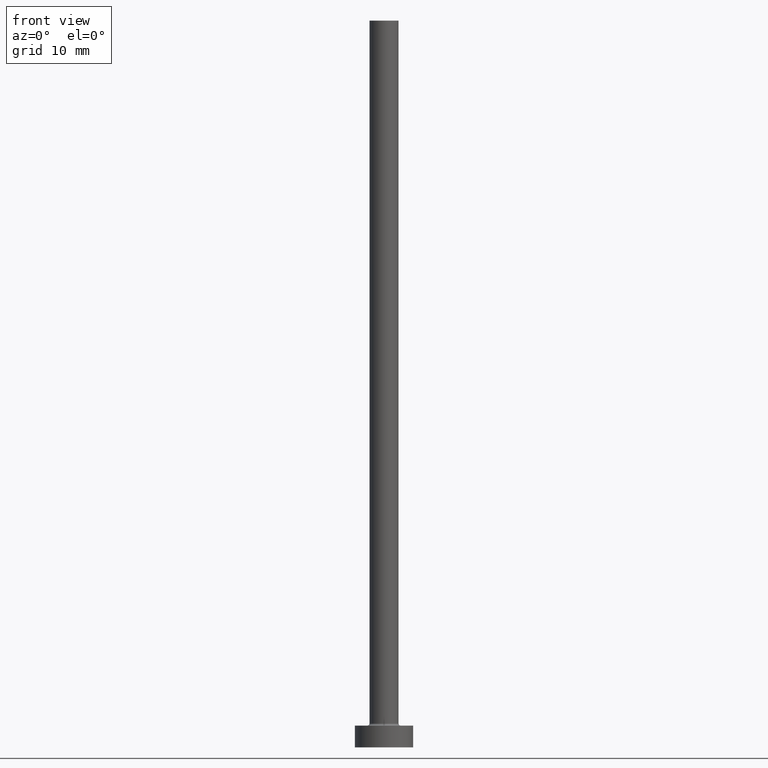
[diagram: clean part render]
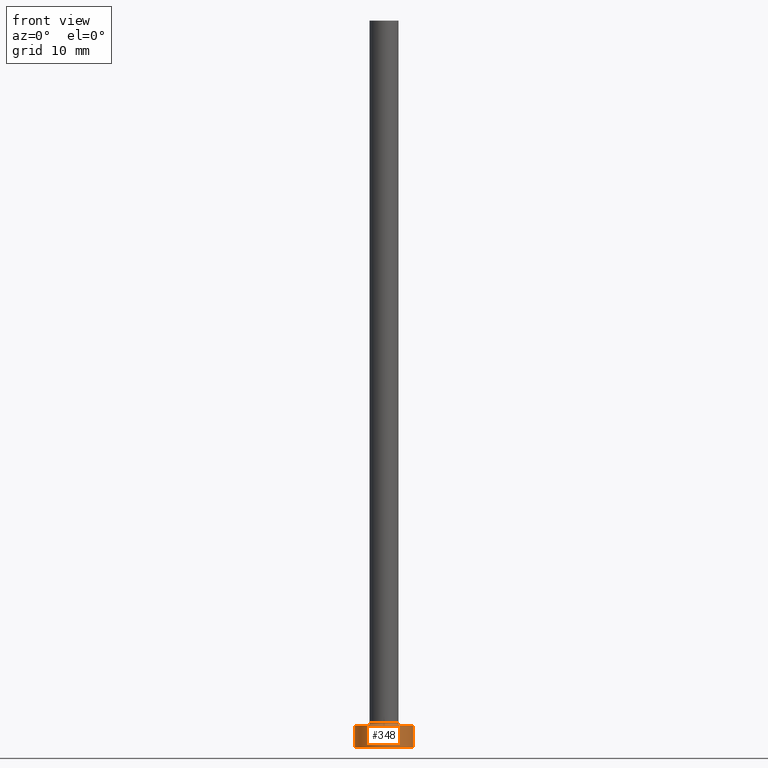
[diagram: same view with one face highlighted and labeled with its STEP entity id]
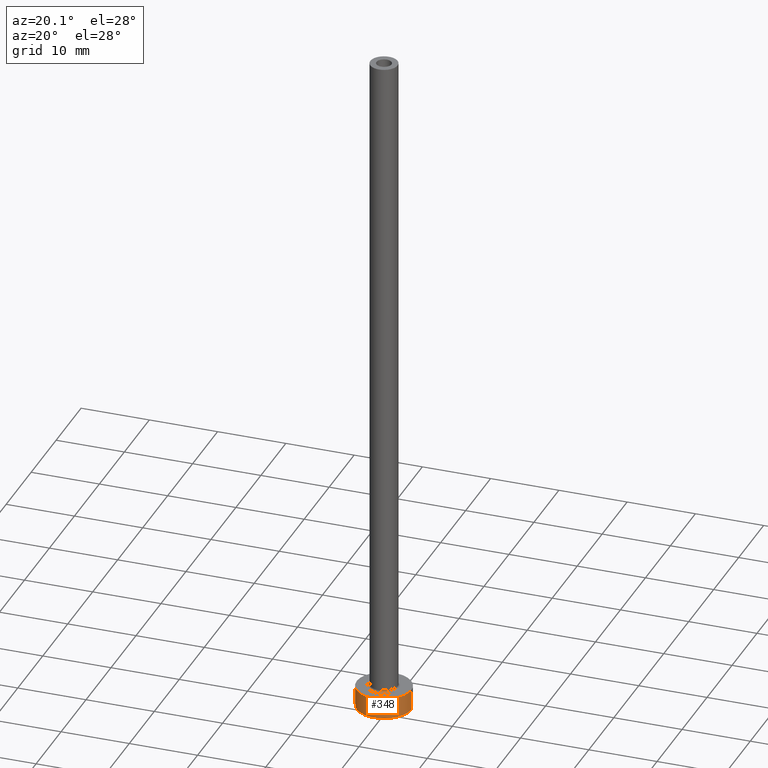
[diagram: same view with one face highlighted and labeled with its STEP entity id]
A machine part, front view. The second image highlights one B-rep face of the part: STEP entity #348.
A second angle (auxiliary view) of the same face is appended — the face is thin or edge-on in the first view.
In plain terms, the highlighted cylindrical surface (edge-blend (fillet) strip) has radius 4 mm, axis along (-0, -0, -1).
Its self-contained STEP definition (entity closure, byte-faithful):
#6 = DIRECTION ( 'NONE',  ( 0.000000000000000000, 0.000000000000000000, 1.000000000000000000 ) ) ;
#14 = CIRCLE ( 'NONE', #70, 4.000000000000000000 ) ;
#16 = EDGE_CURVE ( 'NONE', #356, #66, #377, .T. ) ;
#18 = VECTOR ( 'NONE', #57, 1000.000000000000000 ) ;
#28 = CARTESIAN_POINT ( 'NONE',  ( -4.000000000000000000, 0.000000000000000000, 3.000000000000000000 ) ) ;
#40 = CYLINDRICAL_SURFACE ( 'NONE', #379, 4.000000000000000000 ) ;
#41 = AXIS2_PLACEMENT_3D ( 'NONE', #105, #6, #427 ) ;
#46 = EDGE_LOOP ( 'NONE', ( #236, #424, #360, #363 ) ) ;
#52 = DIRECTION ( 'NONE',  ( -0.000000000000000000, -0.000000000000000000, -1.000000000000000000 ) ) ;
#57 = DIRECTION ( 'NONE',  ( -0.000000000000000000, -0.000000000000000000, -1.000000000000000000 ) ) ;
#66 = VERTEX_POINT ( 'NONE', #84 ) ;
#70 = AXIS2_PLACEMENT_3D ( 'NONE', #302, #295, #327 ) ;
#84 = CARTESIAN_POINT ( 'NONE',  ( 4.000000000000000000, 4.898587196589412829E-16, 0.000000000000000000 ) ) ;
#85 = CARTESIAN_POINT ( 'NONE',  ( 4.000000000000000000, 4.898587196589412829E-16, 3.000000000000000000 ) ) ;
#91 = LINE ( 'NONE', #28, #18 ) ;
#99 = EDGE_CURVE ( 'NONE', #183, #356, #14, .T. ) ;
#105 = CARTESIAN_POINT ( 'NONE',  ( 0.000000000000000000, 0.000000000000000000, 0.000000000000000000 ) ) ;
#136 = DIRECTION ( 'NONE',  ( -1.000000000000000000, 0.000000000000000000, 0.000000000000000000 ) ) ;
#146 = FACE_OUTER_BOUND ( 'NONE', #46, .T. ) ;
#163 = CIRCLE ( 'NONE', #41, 4.000000000000000000 ) ;
#183 = VERTEX_POINT ( 'NONE', #268 ) ;
#206 = VERTEX_POINT ( 'NONE', #447 ) ;
#211 = CARTESIAN_POINT ( 'NONE',  ( 0.000000000000000000, 0.000000000000000000, 3.000000000000000000 ) ) ;
#213 = CARTESIAN_POINT ( 'NONE',  ( 4.000000000000000000, 4.898587196589412829E-16, 3.000000000000000000 ) ) ;
#232 = EDGE_CURVE ( 'NONE', #183, #206, #91, .T. ) ;
#236 = ORIENTED_EDGE ( 'NONE', *, *, #16, .F. ) ;
#268 = CARTESIAN_POINT ( 'NONE',  ( -4.000000000000000000, 0.000000000000000000, 3.000000000000000000 ) ) ;
#295 = DIRECTION ( 'NONE',  ( 0.000000000000000000, 0.000000000000000000, 1.000000000000000000 ) ) ;
#302 = CARTESIAN_POINT ( 'NONE',  ( 0.000000000000000000, 0.000000000000000000, 3.000000000000000000 ) ) ;
#327 = DIRECTION ( 'NONE',  ( 1.000000000000000000, 0.000000000000000000, 0.000000000000000000 ) ) ;
#348 = ADVANCED_FACE ( 'NONE', ( #146 ), #40, .T. ) ;
#356 = VERTEX_POINT ( 'NONE', #213 ) ;
#360 = ORIENTED_EDGE ( 'NONE', *, *, #232, .T. ) ;
#363 = ORIENTED_EDGE ( 'NONE', *, *, #386, .T. ) ;
#377 = LINE ( 'NONE', #85, #416 ) ;
#379 = AXIS2_PLACEMENT_3D ( 'NONE', #211, #397, #136 ) ;
#386 = EDGE_CURVE ( 'NONE', #206, #66, #163, .T. ) ;
#397 = DIRECTION ( 'NONE',  ( -0.000000000000000000, -0.000000000000000000, -1.000000000000000000 ) ) ;
#416 = VECTOR ( 'NONE', #52, 1000.000000000000000 ) ;
#424 = ORIENTED_EDGE ( 'NONE', *, *, #99, .F. ) ;
#427 = DIRECTION ( 'NONE',  ( 1.000000000000000000, 0.000000000000000000, 0.000000000000000000 ) ) ;
#447 = CARTESIAN_POINT ( 'NONE',  ( -4.000000000000000000, 0.000000000000000000, 0.000000000000000000 ) ) ;